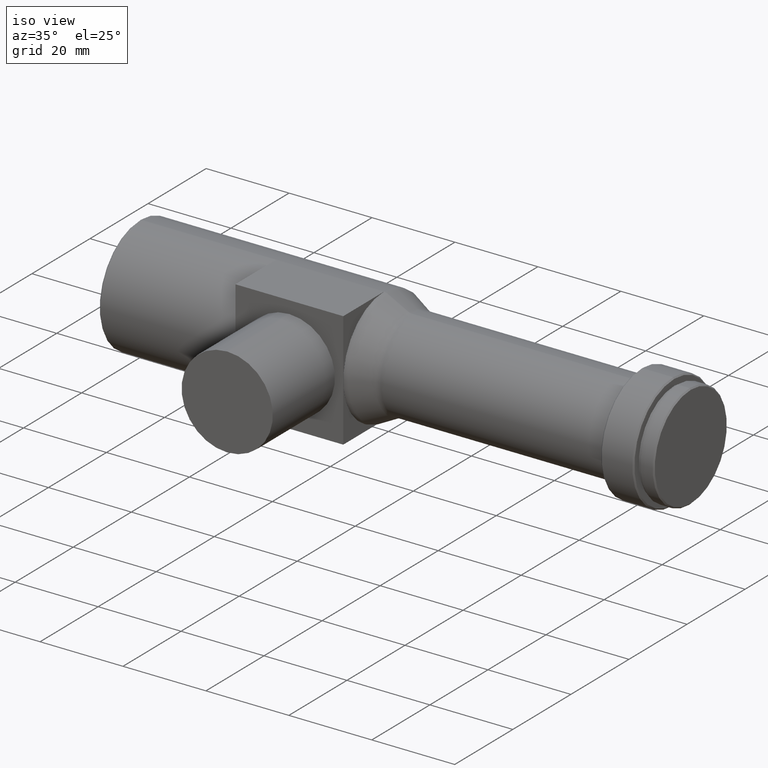
[diagram: clean part render]
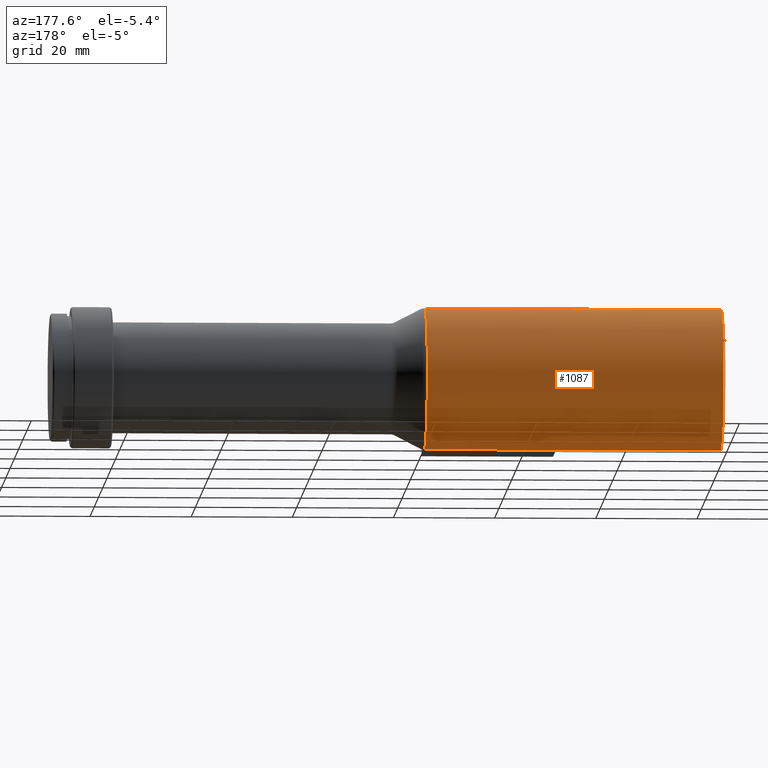
[diagram: tour spotlight — one face highlighted and labeled with its STEP entity id]
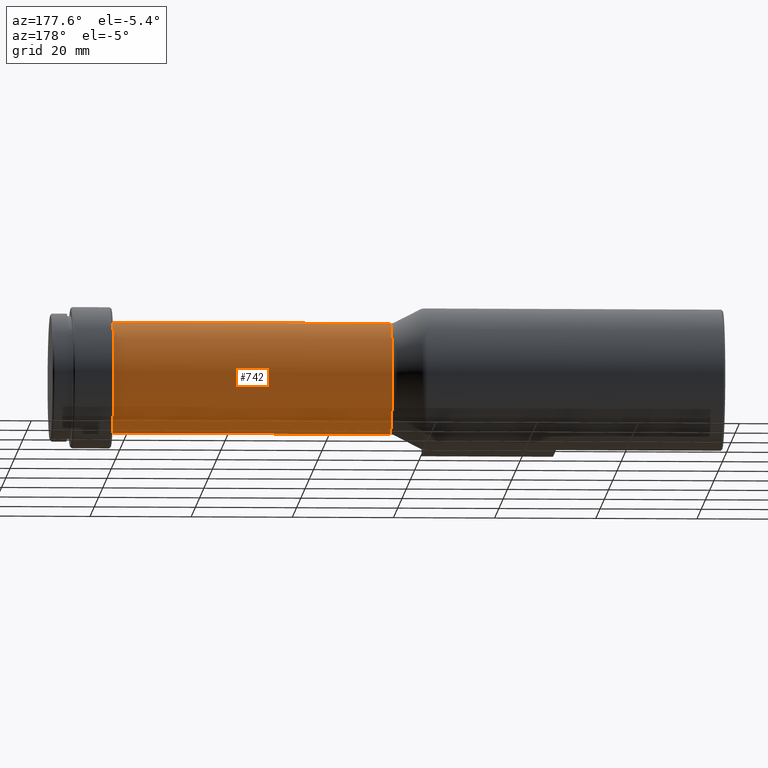
[diagram: tour spotlight — one face highlighted and labeled with its STEP entity id]
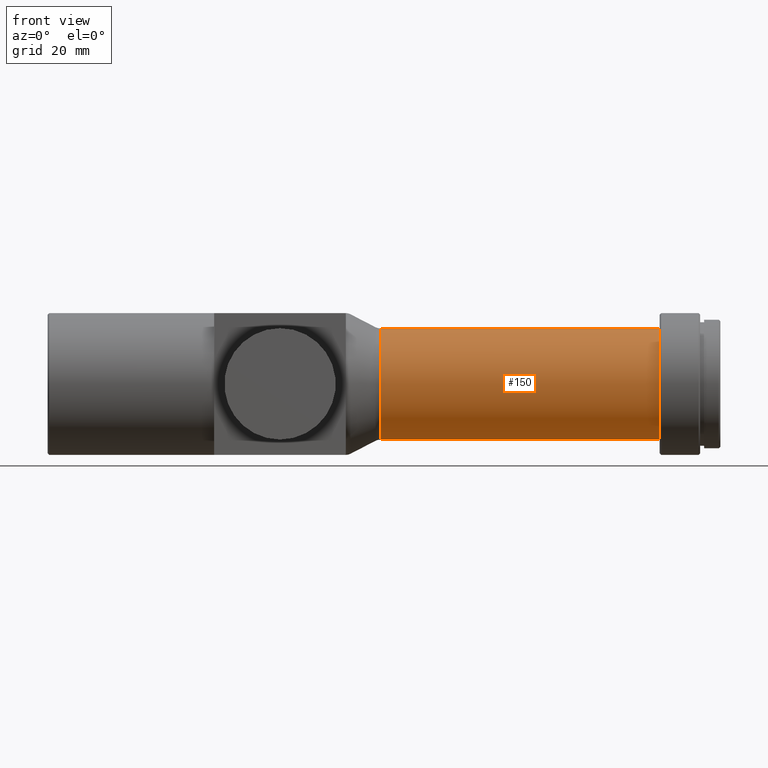
[diagram: tour spotlight — one face highlighted and labeled with its STEP entity id]
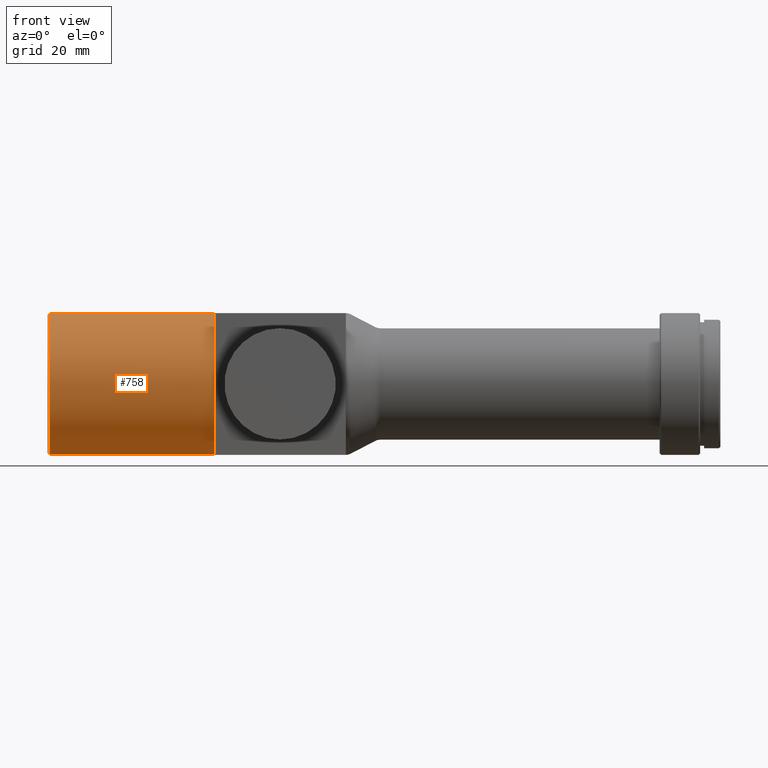
[diagram: tour spotlight — one face highlighted and labeled with its STEP entity id]
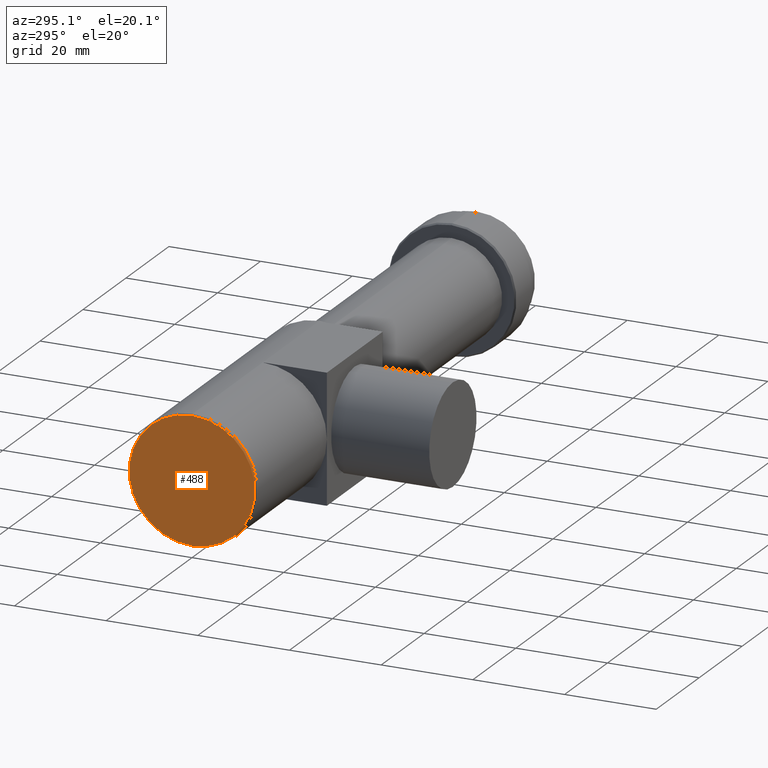
[diagram: tour spotlight — one face highlighted and labeled with its STEP entity id]
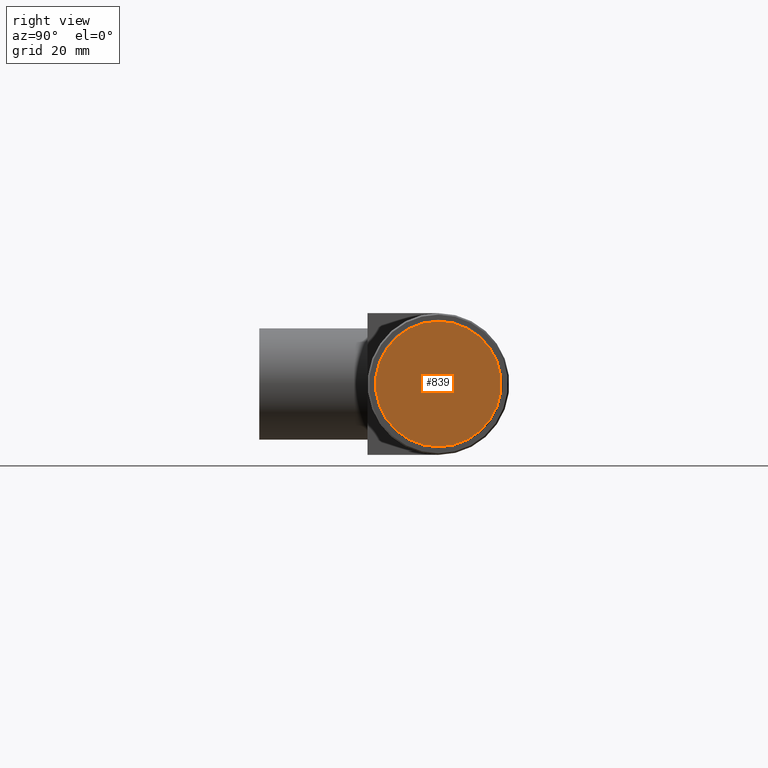
[diagram: tour spotlight — one face highlighted and labeled with its STEP entity id]
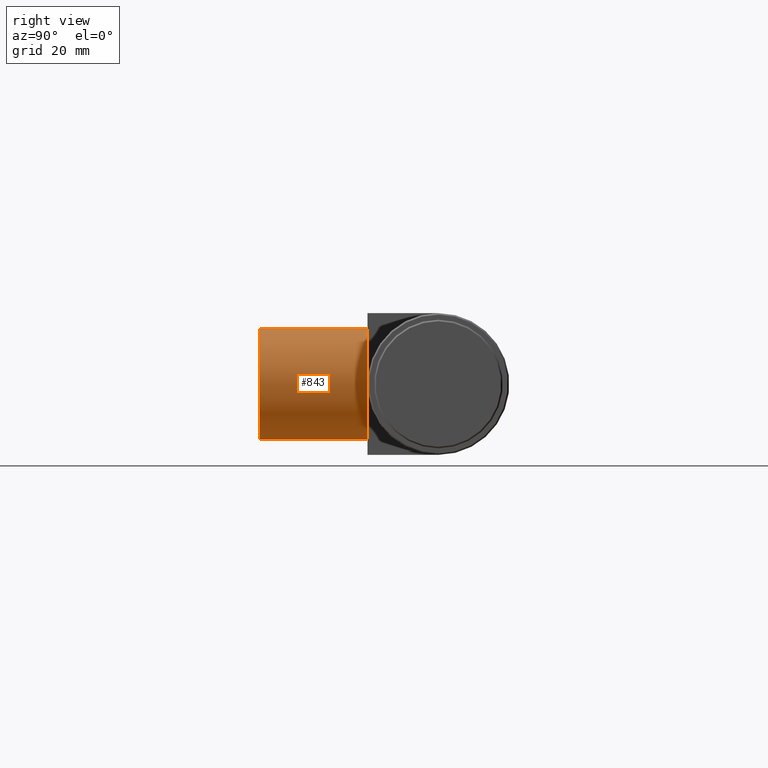
[diagram: tour spotlight — one face highlighted and labeled with its STEP entity id]
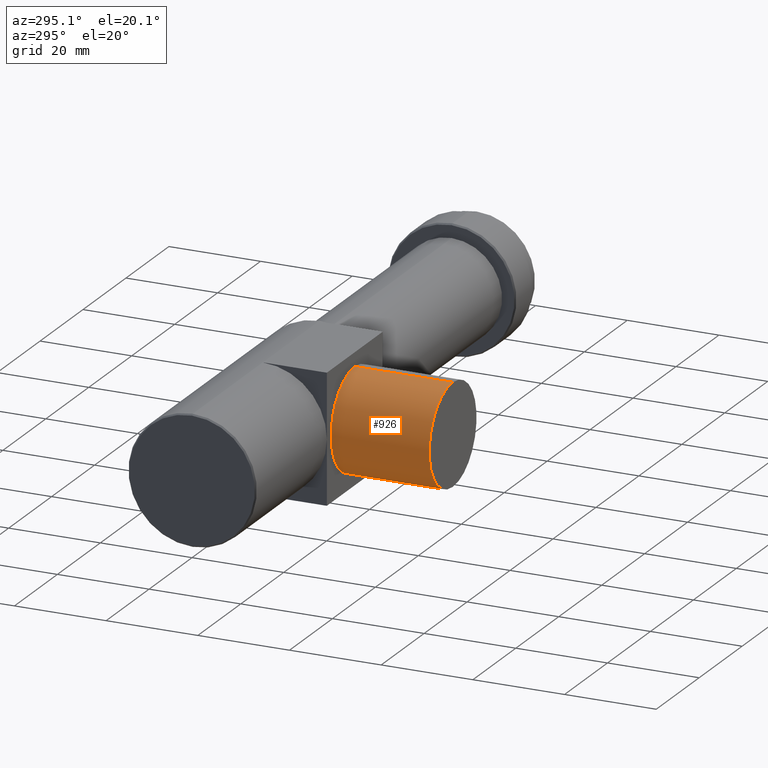
[diagram: tour spotlight — one face highlighted and labeled with its STEP entity id]
A machine part: a face-by-face anatomy tour. The part has 40 B-rep faces; the first image is the clean iso view, then the 8 largest visible faces are spotlighted one at a time (largest first), each with its STEP entity span.

Face 1 — auxiliary view, entity #1087. In plain terms, the highlighted cylindrical surface (partial cylindrical patch) has radius 14 mm, axis along (-1, -0, -0).
Definition (entity closure, byte-faithful):
#18 = CARTESIAN_POINT ( 'NONE',  ( 58.89999999999999100, 0.0000000000000000000, -14.00000000000000000 ) ) ;
#26 = ORIENTED_EDGE ( 'NONE', *, *, #323, .T. ) ;
#43 = CARTESIAN_POINT ( 'NONE',  ( 32.89999999999999900, 0.0000000000000000000, -13.99999999999999800 ) ) ;
#52 = VERTEX_POINT ( 'NONE', #139 ) ;
#70 = CARTESIAN_POINT ( 'NONE',  ( 58.91337927538280900, 0.0000000000000000000, 0.0000000000000000000 ) ) ;
#109 = CARTESIAN_POINT ( 'NONE',  ( 0.0000000000000000000, 0.0000000000000000000, 13.99999999999999800 ) ) ;
#111 = AXIS2_PLACEMENT_3D ( 'NONE', #473, #815, #566 ) ;
#118 = FACE_OUTER_BOUND ( 'NONE', #799, .T. ) ;
#132 = EDGE_CURVE ( 'NONE', #687, #1113, #1030, .T. ) ;
#139 = CARTESIAN_POINT ( 'NONE',  ( 58.89999999999999100, 0.0000000000000000000, 14.00000000000000000 ) ) ;
#149 = DIRECTION ( 'NONE',  ( -1.000000000000000000, -0.0000000000000000000, -0.0000000000000000000 ) ) ;
#162 = DIRECTION ( 'NONE',  ( -1.000000000000000000, -0.0000000000000000000, -0.0000000000000000000 ) ) ;
#193 = VECTOR ( 'NONE', #763, 1000.000000000000000 ) ;
#195 = DIRECTION ( 'NONE',  ( -1.000000000000000000, -0.0000000000000000000, -0.0000000000000000000 ) ) ;
#199 = LINE ( 'NONE', #645, #587 ) ;
#228 = ORIENTED_EDGE ( 'NONE', *, *, #1014, .F. ) ;
#277 = VERTEX_POINT ( 'NONE', #861 ) ;
#280 = CARTESIAN_POINT ( 'NONE',  ( 0.0000000000000000000, 0.0000000000000000000, 0.0000000000000000000 ) ) ;
#287 = VECTOR ( 'NONE', #195, 1000.000000000000000 ) ;
#291 = EDGE_CURVE ( 'NONE', #52, #655, #878, .T. ) ;
#302 = CARTESIAN_POINT ( 'NONE',  ( 32.89999999999999900, 0.0000000000000000000, 14.00000000000000000 ) ) ;
#311 = CYLINDRICAL_SURFACE ( 'NONE', #620, 13.99999999999999800 ) ;
#323 = EDGE_CURVE ( 'NONE', #1113, #1094, #956, .T. ) ;
#332 = VECTOR ( 'NONE', #162, 1000.000000000000000 ) ;
#341 = ORIENTED_EDGE ( 'NONE', *, *, #291, .F. ) ;
#365 = VERTEX_POINT ( 'NONE', #700 ) ;
#411 = CARTESIAN_POINT ( 'NONE',  ( 58.91337927538280900, 1.714505518806294400E-015, -13.99999999999999800 ) ) ;
#442 = DIRECTION ( 'NONE',  ( -1.000000000000000000, -0.0000000000000000000, -0.0000000000000000000 ) ) ;
#450 = CARTESIAN_POINT ( 'NONE',  ( 0.0000000000000000000, 1.714505518806294400E-015, -13.99999999999999800 ) ) ;
#470 = DIRECTION ( 'NONE',  ( -1.000000000000000000, -0.0000000000000000000, -0.0000000000000000000 ) ) ;
#473 = CARTESIAN_POINT ( 'NONE',  ( 0.2999999999999999900, 0.0000000000000000000, 0.0000000000000000000 ) ) ;
#477 = VECTOR ( 'NONE', #969, 1000.000000000000000 ) ;
#555 = ORIENTED_EDGE ( 'NONE', *, *, #992, .T. ) ;
#566 = DIRECTION ( 'NONE',  ( 0.0000000000000000000, 0.0000000000000000000, 1.000000000000000000 ) ) ;
#587 = VECTOR ( 'NONE', #470, 1000.000000000000000 ) ;
#601 = VECTOR ( 'NONE', #442, 1000.000000000000000 ) ;
#620 = AXIS2_PLACEMENT_3D ( 'NONE', #280, #952, #877 ) ;
#644 = EDGE_CURVE ( 'NONE', #365, #277, #677, .T. ) ;
#645 = CARTESIAN_POINT ( 'NONE',  ( 0.0000000000000000000, 0.0000000000000000000, 13.99999999999999800 ) ) ;
#651 = VERTEX_POINT ( 'NONE', #43 ) ;
#655 = VERTEX_POINT ( 'NONE', #302 ) ;
#663 = EDGE_CURVE ( 'NONE', #687, #52, #199, .T. ) ;
#677 = CIRCLE ( 'NONE', #111, 14.00000000000000000 ) ;
#687 = VERTEX_POINT ( 'NONE', #915 ) ;
#700 = CARTESIAN_POINT ( 'NONE',  ( 0.2999999999999999900, 0.0000000000000000000, 14.00000000000000000 ) ) ;
#705 = CARTESIAN_POINT ( 'NONE',  ( 32.89999999999999900, 0.0000000000000000000, -14.00000000000000000 ) ) ;
#737 = ORIENTED_EDGE ( 'NONE', *, *, #959, .T. ) ;
#748 = LINE ( 'NONE', #109, #601 ) ;
#751 = ORIENTED_EDGE ( 'NONE', *, *, #644, .F. ) ;
#760 = CARTESIAN_POINT ( 'NONE',  ( 0.0000000000000000000, 1.714505518806294400E-015, -13.99999999999999800 ) ) ;
#763 = DIRECTION ( 'NONE',  ( -1.000000000000000000, -0.0000000000000000000, -0.0000000000000000000 ) ) ;
#775 = CARTESIAN_POINT ( 'NONE',  ( 32.89999999999999900, 0.0000000000000000000, 14.00000000000000000 ) ) ;
#799 = EDGE_LOOP ( 'NONE', ( #911, #26, #737, #555, #751, #228, #341, #820 ) ) ;
#815 = DIRECTION ( 'NONE',  ( -1.000000000000000000, -0.0000000000000000000, -0.0000000000000000000 ) ) ;
#820 = ORIENTED_EDGE ( 'NONE', *, *, #663, .F. ) ;
#861 = CARTESIAN_POINT ( 'NONE',  ( 0.2999999999999999900, 1.714505518806294800E-015, -14.00000000000000200 ) ) ;
#877 = DIRECTION ( 'NONE',  ( 0.0000000000000000000, 0.0000000000000000000, 1.000000000000000000 ) ) ;
#878 = LINE ( 'NONE', #775, #193 ) ;
#895 = LINE ( 'NONE', #705, #477 ) ;
#897 = AXIS2_PLACEMENT_3D ( 'NONE', #70, #149, #1000 ) ;
#911 = ORIENTED_EDGE ( 'NONE', *, *, #132, .T. ) ;
#915 = CARTESIAN_POINT ( 'NONE',  ( 58.91337927538280900, 0.0000000000000000000, 13.99999999999999800 ) ) ;
#952 = DIRECTION ( 'NONE',  ( -1.000000000000000000, -0.0000000000000000000, -0.0000000000000000000 ) ) ;
#956 = LINE ( 'NONE', #760, #332 ) ;
#959 = EDGE_CURVE ( 'NONE', #1094, #651, #895, .T. ) ;
#969 = DIRECTION ( 'NONE',  ( -1.000000000000000000, -0.0000000000000000000, -0.0000000000000000000 ) ) ;
#992 = EDGE_CURVE ( 'NONE', #651, #277, #1054, .T. ) ;
#1000 = DIRECTION ( 'NONE',  ( 0.0000000000000000000, 0.0000000000000000000, 1.000000000000000000 ) ) ;
#1014 = EDGE_CURVE ( 'NONE', #655, #365, #748, .T. ) ;
#1030 = CIRCLE ( 'NONE', #897, 13.99999999999999800 ) ;
#1054 = LINE ( 'NONE', #450, #287 ) ;
#1087 = ADVANCED_FACE ( 'NONE', ( #118 ), #311, .T. ) ;
#1094 = VERTEX_POINT ( 'NONE', #18 ) ;
#1113 = VERTEX_POINT ( 'NONE', #411 ) ;

Face 2 — auxiliary view, entity #742. In plain terms, the highlighted cylindrical surface (partial cylindrical patch) has radius 11 mm, axis along (-1, -0, -0).
Definition (entity closure, byte-faithful):
#42 = CARTESIAN_POINT ( 'NONE',  ( 65.68662072461721400, 1.360800869613109900E-015, -11.00000000000000200 ) ) ;
#45 = CIRCLE ( 'NONE', #448, 11.00000000000000000 ) ;
#94 = FACE_OUTER_BOUND ( 'NONE', #387, .T. ) ;
#117 = DIRECTION ( 'NONE',  ( -1.000000000000000000, -0.0000000000000000000, -0.0000000000000000000 ) ) ;
#152 = DIRECTION ( 'NONE',  ( -1.000000000000000000, -0.0000000000000000000, -0.0000000000000000000 ) ) ;
#153 = DIRECTION ( 'NONE',  ( -1.000000000000000000, -0.0000000000000000000, -0.0000000000000000000 ) ) ;
#232 = DIRECTION ( 'NONE',  ( 0.0000000000000000000, 0.0000000000000000000, 1.000000000000000000 ) ) ;
#273 = ORIENTED_EDGE ( 'NONE', *, *, #610, .F. ) ;
#276 = CARTESIAN_POINT ( 'NONE',  ( 120.9000000000000100, 1.347111479062088400E-015, -11.00000000000000000 ) ) ;
#288 = ORIENTED_EDGE ( 'NONE', *, *, #567, .T. ) ;
#312 = VECTOR ( 'NONE', #117, 1000.000000000000000 ) ;
#316 = EDGE_CURVE ( 'NONE', #753, #594, #1048, .T. ) ;
#328 = CARTESIAN_POINT ( 'NONE',  ( 120.9000000000000100, 0.0000000000000000000, 11.00000000000000000 ) ) ;
#345 = CARTESIAN_POINT ( 'NONE',  ( 0.0000000000000000000, 0.0000000000000000000, 11.00000000000000000 ) ) ;
#357 = CYLINDRICAL_SURFACE ( 'NONE', #386, 11.00000000000000000 ) ;
#386 = AXIS2_PLACEMENT_3D ( 'NONE', #673, #152, #232 ) ;
#387 = EDGE_LOOP ( 'NONE', ( #676, #288, #273, #1056 ) ) ;
#391 = CARTESIAN_POINT ( 'NONE',  ( 65.68662072461721400, 0.0000000000000000000, 0.0000000000000000000 ) ) ;
#393 = DIRECTION ( 'NONE',  ( -1.000000000000000000, -0.0000000000000000000, -0.0000000000000000000 ) ) ;
#414 = AXIS2_PLACEMENT_3D ( 'NONE', #391, #393, #1069 ) ;
#448 = AXIS2_PLACEMENT_3D ( 'NONE', #657, #744, #832 ) ;
#556 = CIRCLE ( 'NONE', #414, 11.00000000000000200 ) ;
#567 = EDGE_CURVE ( 'NONE', #1080, #713, #796, .T. ) ;
#594 = VERTEX_POINT ( 'NONE', #904 ) ;
#610 = EDGE_CURVE ( 'NONE', #594, #713, #556, .T. ) ;
#621 = VECTOR ( 'NONE', #153, 1000.000000000000000 ) ;
#657 = CARTESIAN_POINT ( 'NONE',  ( 120.9000000000000100, 0.0000000000000000000, 0.0000000000000000000 ) ) ;
#673 = CARTESIAN_POINT ( 'NONE',  ( 0.0000000000000000000, 0.0000000000000000000, 0.0000000000000000000 ) ) ;
#676 = ORIENTED_EDGE ( 'NONE', *, *, #802, .T. ) ;
#713 = VERTEX_POINT ( 'NONE', #42 ) ;
#742 = ADVANCED_FACE ( 'NONE', ( #94 ), #357, .T. ) ;
#744 = DIRECTION ( 'NONE',  ( -1.000000000000000000, -0.0000000000000000000, -0.0000000000000000000 ) ) ;
#753 = VERTEX_POINT ( 'NONE', #328 ) ;
#796 = LINE ( 'NONE', #982, #312 ) ;
#802 = EDGE_CURVE ( 'NONE', #753, #1080, #45, .T. ) ;
#832 = DIRECTION ( 'NONE',  ( 0.0000000000000000000, 0.0000000000000000000, 1.000000000000000000 ) ) ;
#904 = CARTESIAN_POINT ( 'NONE',  ( 65.68662072461721400, 0.0000000000000000000, 11.00000000000000200 ) ) ;
#982 = CARTESIAN_POINT ( 'NONE',  ( 0.0000000000000000000, 1.347111479062088400E-015, -11.00000000000000000 ) ) ;
#1048 = LINE ( 'NONE', #345, #621 ) ;
#1056 = ORIENTED_EDGE ( 'NONE', *, *, #316, .F. ) ;
#1069 = DIRECTION ( 'NONE',  ( 0.0000000000000000000, 0.0000000000000000000, 1.000000000000000000 ) ) ;
#1080 = VERTEX_POINT ( 'NONE', #276 ) ;

Face 3 — front view, entity #150. In plain terms, the highlighted cylindrical surface (partial cylindrical patch) has radius 11 mm, axis along (-1, -0, -0).
Definition (entity closure, byte-faithful):
#42 = CARTESIAN_POINT ( 'NONE',  ( 65.68662072461721400, 1.360800869613109900E-015, -11.00000000000000200 ) ) ;
#101 = CARTESIAN_POINT ( 'NONE',  ( 120.9000000000000100, 0.0000000000000000000, 0.0000000000000000000 ) ) ;
#113 = EDGE_CURVE ( 'NONE', #713, #594, #1108, .T. ) ;
#117 = DIRECTION ( 'NONE',  ( -1.000000000000000000, -0.0000000000000000000, -0.0000000000000000000 ) ) ;
#150 = ADVANCED_FACE ( 'NONE', ( #803 ), #648, .T. ) ;
#153 = DIRECTION ( 'NONE',  ( -1.000000000000000000, -0.0000000000000000000, -0.0000000000000000000 ) ) ;
#264 = AXIS2_PLACEMENT_3D ( 'NONE', #101, #437, #701 ) ;
#276 = CARTESIAN_POINT ( 'NONE',  ( 120.9000000000000100, 1.347111479062088400E-015, -11.00000000000000000 ) ) ;
#290 = ORIENTED_EDGE ( 'NONE', *, *, #113, .F. ) ;
#312 = VECTOR ( 'NONE', #117, 1000.000000000000000 ) ;
#316 = EDGE_CURVE ( 'NONE', #753, #594, #1048, .T. ) ;
#328 = CARTESIAN_POINT ( 'NONE',  ( 120.9000000000000100, 0.0000000000000000000, 11.00000000000000000 ) ) ;
#329 = DIRECTION ( 'NONE',  ( 0.0000000000000000000, 0.0000000000000000000, 1.000000000000000000 ) ) ;
#345 = CARTESIAN_POINT ( 'NONE',  ( 0.0000000000000000000, 0.0000000000000000000, 11.00000000000000000 ) ) ;
#385 = ORIENTED_EDGE ( 'NONE', *, *, #567, .F. ) ;
#404 = DIRECTION ( 'NONE',  ( 0.0000000000000000000, 0.0000000000000000000, 1.000000000000000000 ) ) ;
#427 = EDGE_LOOP ( 'NONE', ( #385, #929, #618, #290 ) ) ;
#437 = DIRECTION ( 'NONE',  ( -1.000000000000000000, -0.0000000000000000000, -0.0000000000000000000 ) ) ;
#459 = AXIS2_PLACEMENT_3D ( 'NONE', #1085, #666, #329 ) ;
#567 = EDGE_CURVE ( 'NONE', #1080, #713, #796, .T. ) ;
#592 = AXIS2_PLACEMENT_3D ( 'NONE', #1081, #745, #404 ) ;
#594 = VERTEX_POINT ( 'NONE', #904 ) ;
#618 = ORIENTED_EDGE ( 'NONE', *, *, #316, .T. ) ;
#621 = VECTOR ( 'NONE', #153, 1000.000000000000000 ) ;
#648 = CYLINDRICAL_SURFACE ( 'NONE', #592, 11.00000000000000000 ) ;
#649 = CIRCLE ( 'NONE', #264, 11.00000000000000000 ) ;
#666 = DIRECTION ( 'NONE',  ( -1.000000000000000000, -0.0000000000000000000, -0.0000000000000000000 ) ) ;
#701 = DIRECTION ( 'NONE',  ( 0.0000000000000000000, 0.0000000000000000000, 1.000000000000000000 ) ) ;
#713 = VERTEX_POINT ( 'NONE', #42 ) ;
#745 = DIRECTION ( 'NONE',  ( -1.000000000000000000, -0.0000000000000000000, -0.0000000000000000000 ) ) ;
#753 = VERTEX_POINT ( 'NONE', #328 ) ;
#796 = LINE ( 'NONE', #982, #312 ) ;
#803 = FACE_OUTER_BOUND ( 'NONE', #427, .T. ) ;
#904 = CARTESIAN_POINT ( 'NONE',  ( 65.68662072461721400, 0.0000000000000000000, 11.00000000000000200 ) ) ;
#929 = ORIENTED_EDGE ( 'NONE', *, *, #935, .T. ) ;
#935 = EDGE_CURVE ( 'NONE', #1080, #753, #649, .T. ) ;
#982 = CARTESIAN_POINT ( 'NONE',  ( 0.0000000000000000000, 1.347111479062088400E-015, -11.00000000000000000 ) ) ;
#1048 = LINE ( 'NONE', #345, #621 ) ;
#1080 = VERTEX_POINT ( 'NONE', #276 ) ;
#1081 = CARTESIAN_POINT ( 'NONE',  ( 0.0000000000000000000, 0.0000000000000000000, 0.0000000000000000000 ) ) ;
#1085 = CARTESIAN_POINT ( 'NONE',  ( 65.68662072461721400, 0.0000000000000000000, 0.0000000000000000000 ) ) ;
#1108 = CIRCLE ( 'NONE', #459, 11.00000000000000200 ) ;

Face 4 — front view, entity #758. In plain terms, the highlighted cylindrical surface (partial cylindrical patch) has radius 14 mm, axis along (-1, -0, -0).
Definition (entity closure, byte-faithful):
#43 = CARTESIAN_POINT ( 'NONE',  ( 32.89999999999999900, 0.0000000000000000000, -13.99999999999999800 ) ) ;
#64 = AXIS2_PLACEMENT_3D ( 'NONE', #1091, #995, #1006 ) ;
#109 = CARTESIAN_POINT ( 'NONE',  ( 0.0000000000000000000, 0.0000000000000000000, 13.99999999999999800 ) ) ;
#172 = CIRCLE ( 'NONE', #635, 13.99999999999999800 ) ;
#195 = DIRECTION ( 'NONE',  ( -1.000000000000000000, -0.0000000000000000000, -0.0000000000000000000 ) ) ;
#214 = ORIENTED_EDGE ( 'NONE', *, *, #1014, .T. ) ;
#219 = CARTESIAN_POINT ( 'NONE',  ( 32.89999999999999900, 0.0000000000000000000, 0.0000000000000000000 ) ) ;
#237 = DIRECTION ( 'NONE',  ( 0.0000000000000000000, 0.0000000000000000000, 1.000000000000000000 ) ) ;
#241 = VERTEX_POINT ( 'NONE', #503 ) ;
#277 = VERTEX_POINT ( 'NONE', #861 ) ;
#287 = VECTOR ( 'NONE', #195, 1000.000000000000000 ) ;
#302 = CARTESIAN_POINT ( 'NONE',  ( 32.89999999999999900, 0.0000000000000000000, 14.00000000000000000 ) ) ;
#305 = DIRECTION ( 'NONE',  ( 1.000000000000000000, 0.0000000000000000000, 0.0000000000000000000 ) ) ;
#315 = ORIENTED_EDGE ( 'NONE', *, *, #690, .F. ) ;
#365 = VERTEX_POINT ( 'NONE', #700 ) ;
#419 = EDGE_CURVE ( 'NONE', #655, #241, #780, .T. ) ;
#442 = DIRECTION ( 'NONE',  ( -1.000000000000000000, -0.0000000000000000000, -0.0000000000000000000 ) ) ;
#449 = FACE_OUTER_BOUND ( 'NONE', #1067, .T. ) ;
#450 = CARTESIAN_POINT ( 'NONE',  ( 0.0000000000000000000, 1.714505518806294400E-015, -13.99999999999999800 ) ) ;
#453 = CIRCLE ( 'NONE', #892, 14.00000000000000000 ) ;
#503 = CARTESIAN_POINT ( 'NONE',  ( 32.89999999999999900, -14.00000000000000000, 0.0000000000000000000 ) ) ;
#524 = ORIENTED_EDGE ( 'NONE', *, *, #789, .F. ) ;
#601 = VECTOR ( 'NONE', #442, 1000.000000000000000 ) ;
#607 = ORIENTED_EDGE ( 'NONE', *, *, #419, .F. ) ;
#611 = CARTESIAN_POINT ( 'NONE',  ( 32.89999999999999900, 0.0000000000000000000, 0.0000000000000000000 ) ) ;
#635 = AXIS2_PLACEMENT_3D ( 'NONE', #219, #305, #986 ) ;
#651 = VERTEX_POINT ( 'NONE', #43 ) ;
#655 = VERTEX_POINT ( 'NONE', #302 ) ;
#665 = CARTESIAN_POINT ( 'NONE',  ( 0.2999999999999999900, 0.0000000000000000000, 0.0000000000000000000 ) ) ;
#690 = EDGE_CURVE ( 'NONE', #241, #651, #172, .T. ) ;
#700 = CARTESIAN_POINT ( 'NONE',  ( 0.2999999999999999900, 0.0000000000000000000, 14.00000000000000000 ) ) ;
#748 = LINE ( 'NONE', #109, #601 ) ;
#758 = ADVANCED_FACE ( 'NONE', ( #449 ), #966, .T. ) ;
#780 = CIRCLE ( 'NONE', #1040, 13.99999999999999800 ) ;
#789 = EDGE_CURVE ( 'NONE', #277, #365, #453, .T. ) ;
#861 = CARTESIAN_POINT ( 'NONE',  ( 0.2999999999999999900, 1.714505518806294800E-015, -14.00000000000000200 ) ) ;
#868 = DIRECTION ( 'NONE',  ( 1.000000000000000000, 0.0000000000000000000, 0.0000000000000000000 ) ) ;
#892 = AXIS2_PLACEMENT_3D ( 'NONE', #665, #931, #237 ) ;
#931 = DIRECTION ( 'NONE',  ( -1.000000000000000000, -0.0000000000000000000, -0.0000000000000000000 ) ) ;
#966 = CYLINDRICAL_SURFACE ( 'NONE', #64, 13.99999999999999800 ) ;
#986 = DIRECTION ( 'NONE',  ( 0.0000000000000000000, 0.0000000000000000000, -1.000000000000000000 ) ) ;
#992 = EDGE_CURVE ( 'NONE', #651, #277, #1054, .T. ) ;
#995 = DIRECTION ( 'NONE',  ( -1.000000000000000000, -0.0000000000000000000, -0.0000000000000000000 ) ) ;
#1006 = DIRECTION ( 'NONE',  ( 0.0000000000000000000, 0.0000000000000000000, 1.000000000000000000 ) ) ;
#1014 = EDGE_CURVE ( 'NONE', #655, #365, #748, .T. ) ;
#1040 = AXIS2_PLACEMENT_3D ( 'NONE', #611, #868, #1041 ) ;
#1041 = DIRECTION ( 'NONE',  ( 0.0000000000000000000, 0.0000000000000000000, -1.000000000000000000 ) ) ;
#1054 = LINE ( 'NONE', #450, #287 ) ;
#1067 = EDGE_LOOP ( 'NONE', ( #1077, #315, #607, #214, #524 ) ) ;
#1077 = ORIENTED_EDGE ( 'NONE', *, *, #992, .F. ) ;
#1091 = CARTESIAN_POINT ( 'NONE',  ( 0.0000000000000000000, 0.0000000000000000000, 0.0000000000000000000 ) ) ;

Face 5 — auxiliary view, entity #488. In plain terms, the highlighted planar face has unit normal (1, 0, 0).
Definition (entity closure, byte-faithful):
#32 = DIRECTION ( 'NONE',  ( 0.0000000000000000000, 0.0000000000000000000, 1.000000000000000000 ) ) ;
#40 = CARTESIAN_POINT ( 'NONE',  ( 0.0000000000000000000, 0.0000000000000000000, 0.0000000000000000000 ) ) ;
#97 = DIRECTION ( 'NONE',  ( 0.0000000000000000000, 0.0000000000000000000, 1.000000000000000000 ) ) ;
#154 = VERTEX_POINT ( 'NONE', #826 ) ;
#210 = DIRECTION ( 'NONE',  ( -1.000000000000000000, -0.0000000000000000000, -0.0000000000000000000 ) ) ;
#367 = CIRCLE ( 'NONE', #725, 13.70000000000000100 ) ;
#382 = DIRECTION ( 'NONE',  ( 1.000000000000000000, 0.0000000000000000000, 0.0000000000000000000 ) ) ;
#456 = ORIENTED_EDGE ( 'NONE', *, *, #545, .T. ) ;
#468 = DIRECTION ( 'NONE',  ( 0.0000000000000000000, 0.0000000000000000000, -1.000000000000000000 ) ) ;
#488 = ADVANCED_FACE ( 'NONE', ( #946 ), #560, .F. ) ;
#545 = EDGE_CURVE ( 'NONE', #696, #154, #367, .T. ) ;
#560 = PLANE ( 'NONE',  #746 ) ;
#562 = CARTESIAN_POINT ( 'NONE',  ( 0.0000000000000000000, 1.696135816819084200E-015, 13.70000000000000100 ) ) ;
#583 = EDGE_LOOP ( 'NONE', ( #1053, #456 ) ) ;
#595 = CARTESIAN_POINT ( 'NONE',  ( 0.0000000000000000000, 0.0000000000000000000, 0.0000000000000000000 ) ) ;
#632 = CARTESIAN_POINT ( 'NONE',  ( 0.0000000000000000000, 0.0000000000000000000, 0.0000000000000000000 ) ) ;
#689 = DIRECTION ( 'NONE',  ( -1.000000000000000000, -0.0000000000000000000, -0.0000000000000000000 ) ) ;
#696 = VERTEX_POINT ( 'NONE', #562 ) ;
#725 = AXIS2_PLACEMENT_3D ( 'NONE', #632, #210, #32 ) ;
#741 = AXIS2_PLACEMENT_3D ( 'NONE', #595, #689, #97 ) ;
#746 = AXIS2_PLACEMENT_3D ( 'NONE', #40, #382, #468 ) ;
#778 = CIRCLE ( 'NONE', #741, 13.70000000000000100 ) ;
#826 = CARTESIAN_POINT ( 'NONE',  ( 0.0000000000000000000, 0.0000000000000000000, -13.70000000000000100 ) ) ;
#917 = EDGE_CURVE ( 'NONE', #154, #696, #778, .T. ) ;
#946 = FACE_OUTER_BOUND ( 'NONE', #583, .T. ) ;
#1053 = ORIENTED_EDGE ( 'NONE', *, *, #917, .T. ) ;

Face 6 — right view, entity #839. In plain terms, the highlighted planar face has unit normal (-1, 0, -0).
Definition (entity closure, byte-faithful):
#86 = DIRECTION ( 'NONE',  ( -0.0000000000000000000, 0.0000000000000000000, 1.000000000000000000 ) ) ;
#91 = EDGE_CURVE ( 'NONE', #353, #294, #140, .T. ) ;
#140 = CIRCLE ( 'NONE', #218, 12.40000000000000400 ) ;
#218 = AXIS2_PLACEMENT_3D ( 'NONE', #750, #1089, #646 ) ;
#250 = CARTESIAN_POINT ( 'NONE',  ( 132.9000000000000100, 0.0000000000000000000, 12.40000000000000400 ) ) ;
#270 = CARTESIAN_POINT ( 'NONE',  ( 132.9000000000000100, 0.0000000000000000000, 0.0000000000000000000 ) ) ;
#294 = VERTEX_POINT ( 'NONE', #1010 ) ;
#353 = VERTEX_POINT ( 'NONE', #250 ) ;
#356 = AXIS2_PLACEMENT_3D ( 'NONE', #1039, #849, #86 ) ;
#376 = EDGE_LOOP ( 'NONE', ( #875, #1047 ) ) ;
#410 = PLANE ( 'NONE',  #356 ) ;
#457 = EDGE_CURVE ( 'NONE', #294, #353, #551, .T. ) ;
#491 = FACE_OUTER_BOUND ( 'NONE', #376, .T. ) ;
#529 = DIRECTION ( 'NONE',  ( 0.0000000000000000000, 0.0000000000000000000, 1.000000000000000000 ) ) ;
#533 = AXIS2_PLACEMENT_3D ( 'NONE', #270, #1042, #529 ) ;
#551 = CIRCLE ( 'NONE', #533, 12.40000000000000400 ) ;
#646 = DIRECTION ( 'NONE',  ( 0.0000000000000000000, 0.0000000000000000000, 1.000000000000000000 ) ) ;
#750 = CARTESIAN_POINT ( 'NONE',  ( 132.9000000000000100, 0.0000000000000000000, 0.0000000000000000000 ) ) ;
#839 = ADVANCED_FACE ( 'NONE', ( #491 ), #410, .F. ) ;
#849 = DIRECTION ( 'NONE',  ( -1.000000000000000000, 0.0000000000000000000, -0.0000000000000000000 ) ) ;
#875 = ORIENTED_EDGE ( 'NONE', *, *, #91, .F. ) ;
#1010 = CARTESIAN_POINT ( 'NONE',  ( 132.9000000000000100, 1.536931732929928800E-015, -12.40000000000000400 ) ) ;
#1039 = CARTESIAN_POINT ( 'NONE',  ( 132.9000000000000100, 12.40000000000000400, 0.0000000000000000000 ) ) ;
#1042 = DIRECTION ( 'NONE',  ( -1.000000000000000000, -0.0000000000000000000, -0.0000000000000000000 ) ) ;
#1047 = ORIENTED_EDGE ( 'NONE', *, *, #457, .F. ) ;
#1089 = DIRECTION ( 'NONE',  ( -1.000000000000000000, -0.0000000000000000000, -0.0000000000000000000 ) ) ;

Face 7 — right view, entity #843. In plain terms, the highlighted cylindrical surface (partial cylindrical patch) has radius 11 mm, axis along (-0, 1, -0).
Definition (entity closure, byte-faithful):
#23 = VERTEX_POINT ( 'NONE', #822 ) ;
#25 = ORIENTED_EDGE ( 'NONE', *, *, #889, .F. ) ;
#33 = FACE_OUTER_BOUND ( 'NONE', #653, .T. ) ;
#57 = DIRECTION ( 'NONE',  ( -0.0000000000000000000, 1.000000000000000000, -0.0000000000000000000 ) ) ;
#74 = CARTESIAN_POINT ( 'NONE',  ( 45.89999999999999900, -35.39999999999999900, -10.99999999999999600 ) ) ;
#136 = DIRECTION ( 'NONE',  ( -0.0000000000000000000, 1.000000000000000000, -0.0000000000000000000 ) ) ;
#160 = EDGE_CURVE ( 'NONE', #400, #781, #422, .T. ) ;
#192 = EDGE_CURVE ( 'NONE', #781, #862, #577, .T. ) ;
#224 = VECTOR ( 'NONE', #1017, 1000.000000000000000 ) ;
#319 = CARTESIAN_POINT ( 'NONE',  ( 45.89999999999999900, -35.39999999999999900, 0.0000000000000000000 ) ) ;
#334 = DIRECTION ( 'NONE',  ( 0.0000000000000000000, 0.0000000000000000000, 1.000000000000000000 ) ) ;
#400 = VERTEX_POINT ( 'NONE', #961 ) ;
#420 = DIRECTION ( 'NONE',  ( 0.0000000000000000000, 0.0000000000000000000, 1.000000000000000000 ) ) ;
#422 = CIRCLE ( 'NONE', #958, 10.99999999999999600 ) ;
#462 = AXIS2_PLACEMENT_3D ( 'NONE', #774, #518, #420 ) ;
#518 = DIRECTION ( 'NONE',  ( -0.0000000000000000000, 1.000000000000000000, -0.0000000000000000000 ) ) ;
#575 = CARTESIAN_POINT ( 'NONE',  ( 45.89999999999999900, -14.00000000000000000, 0.0000000000000000000 ) ) ;
#577 = LINE ( 'NONE', #993, #747 ) ;
#599 = CARTESIAN_POINT ( 'NONE',  ( 45.89999999999999900, 0.0000000000000000000, 10.99999999999999600 ) ) ;
#653 = EDGE_LOOP ( 'NONE', ( #989, #707, #797, #25 ) ) ;
#691 = CARTESIAN_POINT ( 'NONE',  ( 45.89999999999999900, -14.00000000000000000, -10.99999999999999600 ) ) ;
#707 = ORIENTED_EDGE ( 'NONE', *, *, #192, .T. ) ;
#747 = VECTOR ( 'NONE', #916, 1000.000000000000000 ) ;
#755 = DIRECTION ( 'NONE',  ( 0.0000000000000000000, 0.0000000000000000000, 1.000000000000000000 ) ) ;
#774 = CARTESIAN_POINT ( 'NONE',  ( 45.89999999999999900, 0.0000000000000000000, 0.0000000000000000000 ) ) ;
#781 = VERTEX_POINT ( 'NONE', #74 ) ;
#785 = EDGE_CURVE ( 'NONE', #23, #862, #855, .T. ) ;
#797 = ORIENTED_EDGE ( 'NONE', *, *, #785, .F. ) ;
#822 = CARTESIAN_POINT ( 'NONE',  ( 45.89999999999999900, -14.00000000000000000, 10.99999999999999600 ) ) ;
#843 = ADVANCED_FACE ( 'NONE', ( #33 ), #949, .T. ) ;
#855 = CIRCLE ( 'NONE', #871, 10.99999999999999600 ) ;
#862 = VERTEX_POINT ( 'NONE', #691 ) ;
#871 = AXIS2_PLACEMENT_3D ( 'NONE', #575, #57, #755 ) ;
#889 = EDGE_CURVE ( 'NONE', #400, #23, #937, .T. ) ;
#916 = DIRECTION ( 'NONE',  ( -0.0000000000000000000, 1.000000000000000000, -0.0000000000000000000 ) ) ;
#937 = LINE ( 'NONE', #599, #224 ) ;
#949 = CYLINDRICAL_SURFACE ( 'NONE', #462, 10.99999999999999600 ) ;
#958 = AXIS2_PLACEMENT_3D ( 'NONE', #319, #136, #334 ) ;
#961 = CARTESIAN_POINT ( 'NONE',  ( 45.89999999999999900, -35.39999999999999900, 10.99999999999999600 ) ) ;
#989 = ORIENTED_EDGE ( 'NONE', *, *, #160, .T. ) ;
#993 = CARTESIAN_POINT ( 'NONE',  ( 45.89999999999999900, 0.0000000000000000000, -10.99999999999999600 ) ) ;
#1017 = DIRECTION ( 'NONE',  ( -0.0000000000000000000, 1.000000000000000000, -0.0000000000000000000 ) ) ;

Face 8 — auxiliary view, entity #926. In plain terms, the highlighted cylindrical surface (partial cylindrical patch) has radius 11 mm, axis along (-0, 1, -0).
Definition (entity closure, byte-faithful):
#9 = CYLINDRICAL_SURFACE ( 'NONE', #371, 10.99999999999999600 ) ;
#23 = VERTEX_POINT ( 'NONE', #822 ) ;
#28 = AXIS2_PLACEMENT_3D ( 'NONE', #879, #884, #544 ) ;
#74 = CARTESIAN_POINT ( 'NONE',  ( 45.89999999999999900, -35.39999999999999900, -10.99999999999999600 ) ) ;
#79 = CARTESIAN_POINT ( 'NONE',  ( 45.89999999999999900, 0.0000000000000000000, 0.0000000000000000000 ) ) ;
#179 = FACE_OUTER_BOUND ( 'NONE', #226, .T. ) ;
#192 = EDGE_CURVE ( 'NONE', #781, #862, #577, .T. ) ;
#212 = DIRECTION ( 'NONE',  ( 0.0000000000000000000, 0.0000000000000000000, 1.000000000000000000 ) ) ;
#224 = VECTOR ( 'NONE', #1017, 1000.000000000000000 ) ;
#226 = EDGE_LOOP ( 'NONE', ( #976, #779, #712, #909 ) ) ;
#268 = DIRECTION ( 'NONE',  ( -0.0000000000000000000, 1.000000000000000000, -0.0000000000000000000 ) ) ;
#371 = AXIS2_PLACEMENT_3D ( 'NONE', #79, #268, #682 ) ;
#400 = VERTEX_POINT ( 'NONE', #961 ) ;
#544 = DIRECTION ( 'NONE',  ( 0.0000000000000000000, 0.0000000000000000000, 1.000000000000000000 ) ) ;
#558 = DIRECTION ( 'NONE',  ( -0.0000000000000000000, 1.000000000000000000, -0.0000000000000000000 ) ) ;
#577 = LINE ( 'NONE', #993, #747 ) ;
#599 = CARTESIAN_POINT ( 'NONE',  ( 45.89999999999999900, 0.0000000000000000000, 10.99999999999999600 ) ) ;
#682 = DIRECTION ( 'NONE',  ( 0.0000000000000000000, 0.0000000000000000000, 1.000000000000000000 ) ) ;
#691 = CARTESIAN_POINT ( 'NONE',  ( 45.89999999999999900, -14.00000000000000000, -10.99999999999999600 ) ) ;
#711 = CIRCLE ( 'NONE', #757, 10.99999999999999600 ) ;
#712 = ORIENTED_EDGE ( 'NONE', *, *, #889, .T. ) ;
#718 = EDGE_CURVE ( 'NONE', #862, #23, #711, .T. ) ;
#747 = VECTOR ( 'NONE', #916, 1000.000000000000000 ) ;
#757 = AXIS2_PLACEMENT_3D ( 'NONE', #1060, #558, #212 ) ;
#779 = ORIENTED_EDGE ( 'NONE', *, *, #1031, .T. ) ;
#781 = VERTEX_POINT ( 'NONE', #74 ) ;
#822 = CARTESIAN_POINT ( 'NONE',  ( 45.89999999999999900, -14.00000000000000000, 10.99999999999999600 ) ) ;
#862 = VERTEX_POINT ( 'NONE', #691 ) ;
#879 = CARTESIAN_POINT ( 'NONE',  ( 45.89999999999999900, -35.39999999999999900, 0.0000000000000000000 ) ) ;
#884 = DIRECTION ( 'NONE',  ( -0.0000000000000000000, 1.000000000000000000, -0.0000000000000000000 ) ) ;
#889 = EDGE_CURVE ( 'NONE', #400, #23, #937, .T. ) ;
#908 = CIRCLE ( 'NONE', #28, 10.99999999999999600 ) ;
#909 = ORIENTED_EDGE ( 'NONE', *, *, #718, .F. ) ;
#916 = DIRECTION ( 'NONE',  ( -0.0000000000000000000, 1.000000000000000000, -0.0000000000000000000 ) ) ;
#926 = ADVANCED_FACE ( 'NONE', ( #179 ), #9, .T. ) ;
#937 = LINE ( 'NONE', #599, #224 ) ;
#961 = CARTESIAN_POINT ( 'NONE',  ( 45.89999999999999900, -35.39999999999999900, 10.99999999999999600 ) ) ;
#976 = ORIENTED_EDGE ( 'NONE', *, *, #192, .F. ) ;
#993 = CARTESIAN_POINT ( 'NONE',  ( 45.89999999999999900, 0.0000000000000000000, -10.99999999999999600 ) ) ;
#1017 = DIRECTION ( 'NONE',  ( -0.0000000000000000000, 1.000000000000000000, -0.0000000000000000000 ) ) ;
#1031 = EDGE_CURVE ( 'NONE', #781, #400, #908, .T. ) ;
#1060 = CARTESIAN_POINT ( 'NONE',  ( 45.89999999999999900, -14.00000000000000000, 0.0000000000000000000 ) ) ;